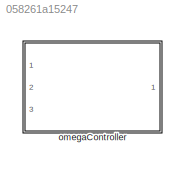
MODEL slx_058261a15247
KIND model
CONFIG AbsTol = auto
CONFIG EnableMultiTasking = off
CONFIG FixedStep = auto
CONFIG MaxStep = auto
CONFIG MinStep = auto
CONFIG RelTol = 1e-3
CONFIG SampleTimeConstraint = Unconstrained
CONFIG Solver = VariableStepAuto
CONFIG SolverName = VariableStepAuto
CONFIG StartTime = 0.0
CONFIG StopTime = 10.0
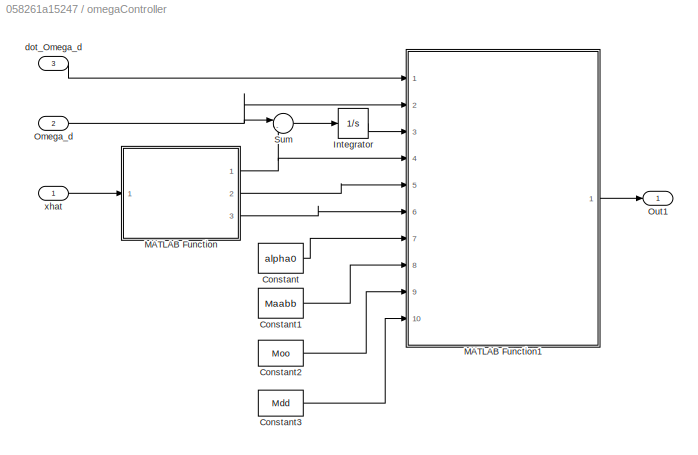
BLOCK [SubSystem] omegaController
  Ports = [3, 1]
  RequestExecContextInheritance = off
BLOCK [Constant] omegaController/Constant
  Value = alpha0
BLOCK [Constant] omegaController/Constant1
  Value = Maabb
BLOCK [Constant] omegaController/Constant2
  Value = Moo
BLOCK [Constant] omegaController/Constant3
  Value = Mdd
BLOCK [Integrator] omegaController/Integrator
  Ports = [1, 1]
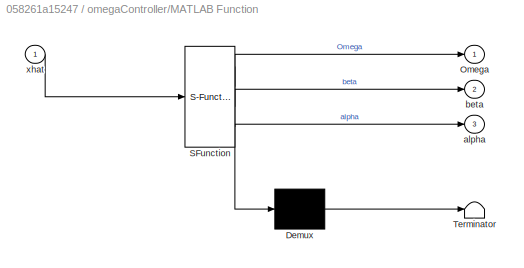
BLOCK [SubSystem] omegaController/MATLAB Function
  ErrorFcn = Stateflow.Translate.translate
  PermitHierarchicalResolution = ExplicitOnly
  Ports = [1, 3]
  RequestExecContextInheritance = off
  SFBlockType = MATLAB Function
  TreatAsAtomicUnit = on
BLOCK [Demux] omegaController/MATLAB Function/ Demux 
  Outputs = 1
  Ports = [1, 1]
BLOCK [S-Function] omegaController/MATLAB Function/ SFunction 
  EnableBusSupport = off
  FunctionName = sf_sfun
  PortCounts = [1 4]
  Ports = [1, 4]
  SFcnIsStateOwnerBlock = off
  SFunctionDeploymentMode = off
  Tag = Stateflow S-Function omegaController 2
BLOCK [Terminator] omegaController/MATLAB Function/ Terminator 
BLOCK [Outport] omegaController/MATLAB Function/Omega
  IconDisplay = Port number
BLOCK [Outport] omegaController/MATLAB Function/alpha
  IconDisplay = Port number
  Port = 3
BLOCK [Outport] omegaController/MATLAB Function/beta
  IconDisplay = Port number
  Port = 2
BLOCK [Inport] omegaController/MATLAB Function/xhat
  IconDisplay = Port number
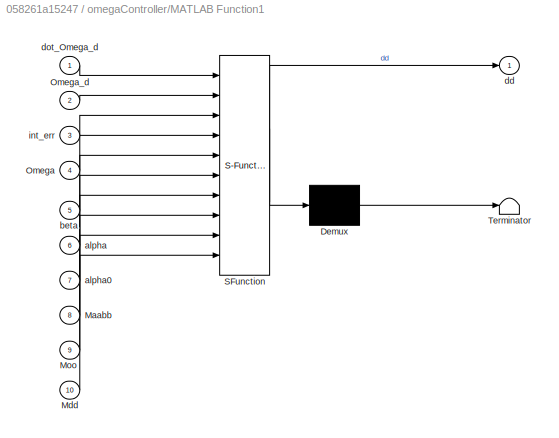
BLOCK [SubSystem] omegaController/MATLAB Function1
  ErrorFcn = Stateflow.Translate.translate
  PermitHierarchicalResolution = ExplicitOnly
  Ports = [10, 1]
  RequestExecContextInheritance = off
  SFBlockType = MATLAB Function
  TreatAsAtomicUnit = on
BLOCK [Demux] omegaController/MATLAB Function1/ Demux 
  Outputs = 1
  Ports = [1, 1]
BLOCK [S-Function] omegaController/MATLAB Function1/ SFunction 
  EnableBusSupport = off
  FunctionName = sf_sfun
  PortCounts = [10 2]
  Ports = [10, 2]
  SFcnIsStateOwnerBlock = off
  SFunctionDeploymentMode = off
  Tag = Stateflow S-Function omegaController 1
BLOCK [Terminator] omegaController/MATLAB Function1/ Terminator 
BLOCK [Inport] omegaController/MATLAB Function1/Maabb
  IconDisplay = Port number
  Port = 8
BLOCK [Inport] omegaController/MATLAB Function1/Mdd
  IconDisplay = Port number
  Port = 10
BLOCK [Inport] omegaController/MATLAB Function1/Moo
  IconDisplay = Port number
  Port = 9
BLOCK [Inport] omegaController/MATLAB Function1/Omega
  IconDisplay = Port number
  Port = 4
BLOCK [Inport] omegaController/MATLAB Function1/Omega_d
  IconDisplay = Port number
  Port = 2
BLOCK [Inport] omegaController/MATLAB Function1/alpha
  IconDisplay = Port number
  Port = 6
BLOCK [Inport] omegaController/MATLAB Function1/alpha0
  IconDisplay = Port number
  Port = 7
BLOCK [Inport] omegaController/MATLAB Function1/beta
  IconDisplay = Port number
  Port = 5
BLOCK [Outport] omegaController/MATLAB Function1/dd
  IconDisplay = Port number
BLOCK [Inport] omegaController/MATLAB Function1/dot_Omega_d
  IconDisplay = Port number
BLOCK [Inport] omegaController/MATLAB Function1/int_err
  IconDisplay = Port number
  Port = 3
BLOCK [Inport] omegaController/Omega_d
  IconDisplay = Port number
  Port = 2
BLOCK [Outport] omegaController/Out1
  IconDisplay = Port number
BLOCK [Sum] omegaController/Sum
  IconShape = round
  InputSameDT = off
  Inputs = |-+
  OutDataTypeStr = Inherit: Inherit via internal rule
  Ports = [2, 1]
  SaturateOnIntegerOverflow = off
BLOCK [Inport] omegaController/dot_Omega_d
  IconDisplay = Port number
  Port = 3
BLOCK [Inport] omegaController/xhat
  IconDisplay = Port number
LINE omegaController/Constant1:1 -> omegaController/MATLAB Function1:8
LINE omegaController/Constant2:1 -> omegaController/MATLAB Function1:9
LINE omegaController/Constant3:1 -> omegaController/MATLAB Function1:10
LINE omegaController/Constant:1 -> omegaController/MATLAB Function1:7
LINE omegaController/Integrator:1 -> omegaController/MATLAB Function1:3
LINE omegaController/MATLAB Function1:1 -> omegaController/Out1:1
NET omegaController/MATLAB Function:1 -> omegaController/MATLAB Function1:4, omegaController/Sum:2
LINE omegaController/MATLAB Function:2 -> omegaController/MATLAB Function1:5
LINE omegaController/MATLAB Function:3 -> omegaController/MATLAB Function1:6
NET omegaController/Omega_d:1 -> omegaController/MATLAB Function1:2, omegaController/Sum:1
LINE omegaController/Sum:1 -> omegaController/Integrator:1
LINE omegaController/dot_Omega_d:1 -> omegaController/MATLAB Function1:1
LINE omegaController/xhat:1 -> omegaController/MATLAB Function:1
note: NET lines group one-source signal fan-out (src -> all destinations, sorted); 1:1 wires keep LINE
CHART omegaController/MATLAB Function1 states=1 transitions=1
  STATE_LABEL 'eML_blk_kernel()'
  STATE_LABEL 'SCRIPT:\nfunction dd = controller(dot_Omega_d,Omega_d,int_err,Omega,beta,alpha,alpha0,Maabb,Moo,Mdd)\n% Equation 48 [1]\n\n    % gains\n    kp = 1;\n    ki = 1;\n    \n    % auxiliary calculations\n    Soo = skew(Omega);\n    \n    % control law\n    dd = Mdd\\(Soo*Omega-...\n        Maabb*[beta;alpha-alpha0]-...\n        Moo*Omega-...\n        kp*(Omega-Omega_d)-...\n        ki*int_err+dot_Omega_d);\nend\n\nfunction...<+415ch>'
CHART omegaController/MATLAB Function states=1 transitions=1
  STATE_LABEL 'eML_blk_kernel()'
  STATE_LABEL 'SCRIPT:\nfunction [Omega,beta,alpha] = getData(xhat)\n    Omega = xhat(10:12);\n    beta = xhat(6);\n    alpha = xhat(5);\nend\n'
